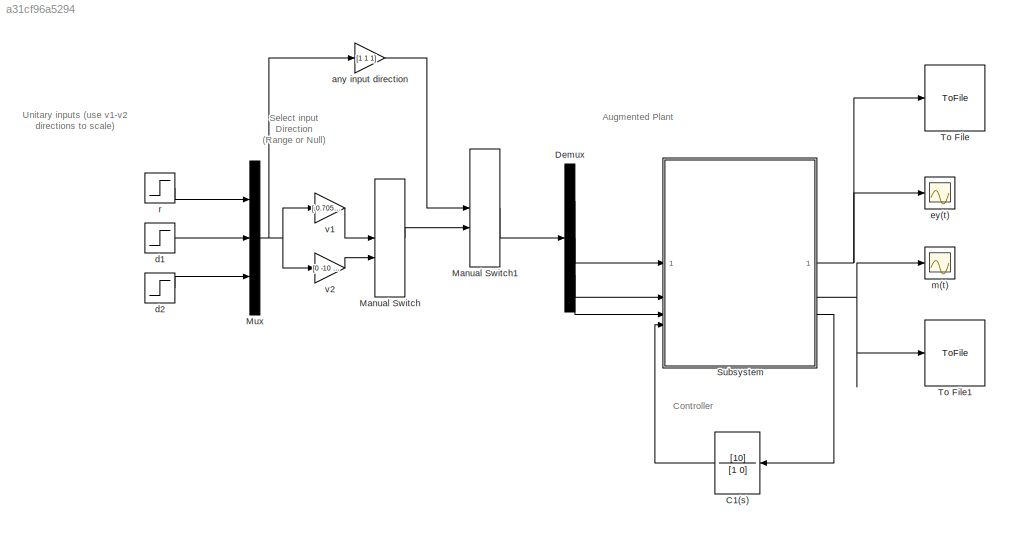
MODEL slx_a31cf96a5294
KIND model
CONFIG AbsTol = auto
CONFIG EnableMultiTasking = off
CONFIG FixedStep = auto
CONFIG MaxStep = auto
CONFIG MinStep = auto
CONFIG RelTol = 1e-3
CONFIG SampleTimeConstraint = Unconstrained
CONFIG SolverName = VariableStepAuto
CONFIG StartTime = 0.0
CONFIG StopTime = 10.0
BLOCK [TransferFcn] C1(s)
  Denominator = [1 0]
  Numerator = [10]
BLOCK [Demux] Demux
  Outputs = 3
BLOCK [ManualSwitch] Manual Switch
  CurrentSetting = 0
BLOCK [ManualSwitch] Manual Switch1
BLOCK [Mux] Mux
  DisplayOption = bar
  Inputs = 3
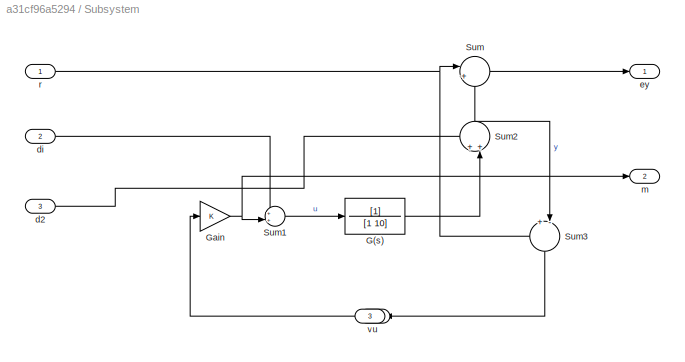
BLOCK [SubSystem] Subsystem
BLOCK [TransferFcn] Subsystem/G(s)
  Denominator = [1 10]
BLOCK [Gain] Subsystem/Gain
BLOCK [Sum] Subsystem/Sum
  Inputs = |+-
BLOCK [Sum] Subsystem/Sum1
  Inputs = ++|
BLOCK [Sum] Subsystem/Sum2
  Inputs = ++|
  NameLocation = right
BLOCK [Sum] Subsystem/Sum3
  Inputs = +-|
  NameLocation = left
BLOCK [Inport] Subsystem/d2
  Port = 3
BLOCK [Inport] Subsystem/di
  Port = 2
BLOCK [Outport] Subsystem/ey
BLOCK [Outport] Subsystem/m
  Port = 2
BLOCK [Inport] Subsystem/r
BLOCK [Inport] Subsystem/u
  Port = 4
BLOCK [Outport] Subsystem/v
  Port = 3
BLOCK [ToFile] To File
  Filename = ey_any.mat
  SaveFormat = Timeseries
BLOCK [ToFile] To File1
  Filename = m_any.mat
  SaveFormat = Timeseries
BLOCK [Gain] any input direction
  Gain = [1 1 1]
BLOCK [Step] d1
  SampleTime = 0
  Time = 0
BLOCK [Step] d2
  SampleTime = 0
  Time = 0
BLOCK [Scope] ey(t)
  Floating = off
  NumInputPorts = 1
  ScopeSpecificationString = Simulink.scopes.TimeScopeBlockCfg('CurrentConfiguration', extmgr.ConfigurationSet(extmgr.Configuration('Core','General UI',true),extmgr.Configuration('Core','Source UI',true),extmgr.Configuration('Sources','WiredSimulink',true),extmgr.Configuration('Visuals','Time Domain',true,'SerializedDisplays',{struct('MinYLimReal','-0.09371','MaxYLimReal','0.01041','YLabelReal','','MinYLimMag','0.00000','MaxY...<+1449ch>
BLOCK [Scope] m(t)
  Floating = off
  NumInputPorts = 1
  ScopeSpecificationString = Simulink.scopes.TimeScopeBlockCfg('CurrentConfiguration', extmgr.ConfigurationSet(extmgr.Configuration('Core','General UI',true),extmgr.Configuration('Core','Source UI',true),extmgr.Configuration('Sources','WiredSimulink',true,'DataLoggingVariableName','ScopeData1'),extmgr.Configuration('Visuals','Time Domain',true,'SerializedDisplays',{struct('MinYLimReal','-1.12498','MaxYLimReal','0.125','YLabel...<+1455ch>
BLOCK [Step] r
  SampleTime = 0
  Time = 0
BLOCK [Gain] v1
  Gain = [ 0.7053 -0.0705 -0.7053]
BLOCK [Gain] v2
  Gain = [0 -10 1]
ANNOTATION (root): Augmented Plant
ANNOTATION (root): Controller
ANNOTATION (root): Select input Direction (Range or Null)
ANNOTATION (root): Unitary inputs (use v1-v2 directions to scale)
LINE C1(s):1 -> Subsystem:4
LINE Demux:1 -> Subsystem:1
LINE Demux:2 -> Subsystem:2
LINE Demux:3 -> Subsystem:3
LINE Manual Switch1:1 -> Demux:1
LINE Manual Switch:1 -> Manual Switch1:2
NET Mux:1 -> any input direction:1, v1:1, v2:1
LINE Subsystem/G(s):1 -> Subsystem/Sum2:2
NET Subsystem/Gain:1 -> Subsystem/Sum1:2, Subsystem/m:1
LINE Subsystem/Sum1:1 -> Subsystem/G(s):1
NET Subsystem/Sum2:1 -> Subsystem/Sum3:2, Subsystem/Sum:2
LINE Subsystem/Sum3:1 -> Subsystem/v:1
LINE Subsystem/Sum:1 -> Subsystem/ey:1
LINE Subsystem/d2:1 -> Subsystem/Sum2:1
LINE Subsystem/di:1 -> Subsystem/Sum1:1
NET Subsystem/r:1 -> Subsystem/Sum3:1, Subsystem/Sum:1
LINE Subsystem/u:1 -> Subsystem/Gain:1
NET Subsystem:1 -> To File:1, ey(t):1
NET Subsystem:2 -> To File1:1, m(t):1
LINE Subsystem:3 -> C1(s):1
LINE any input direction:1 -> Manual Switch1:1
LINE d1:1 -> Mux:2
LINE d2:1 -> Mux:3
LINE r:1 -> Mux:1
LINE v1:1 -> Manual Switch:1
LINE v2:1 -> Manual Switch:2
note: NET lines group one-source signal fan-out (src -> all destinations, sorted); 1:1 wires keep LINE
